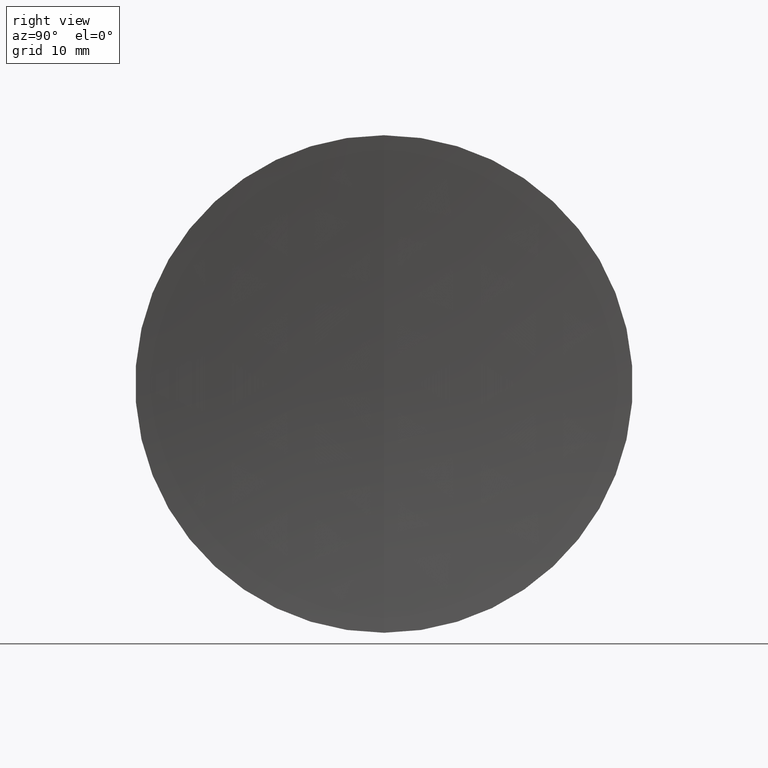
[diagram: clean part render]
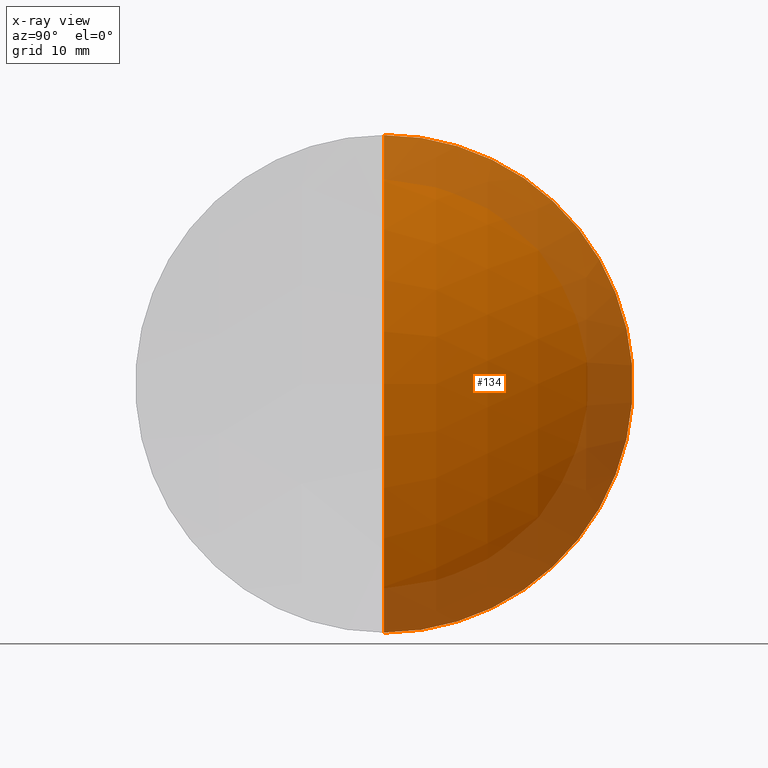
[diagram: x-ray — body ghosted, one internal face saturated and labeled with its STEP entity id]
A machine part, right view, then the same camera in x-ray: the body is ghosted and one INTERNAL B-rep face — a face not visible from any outside direction — is saturated and labeled: STEP entity #134.
In plain terms, the highlighted spherical surface has radius 48.31 mm.
Its self-contained STEP definition (entity closure, byte-faithful):
#5 = DIRECTION ( 'NONE',  ( 0.0000000000000000000, -1.000000000000000000, 0.0000000000000000000 ) ) ;
#9 = CARTESIAN_POINT ( 'NONE',  ( 62.59034463297795300, 0.0000000000000000000, -1.005007927519728000E-022 ) ) ;
#15 = CARTESIAN_POINT ( 'NONE',  ( 110.9003446329779600, 0.0000000000000000000, 2.958134242839639600E-015 ) ) ;
#17 = CARTESIAN_POINT ( 'NONE',  ( 103.6840923325976700, 0.0000000000000000000, 25.39999999999999500 ) ) ;
#22 = EDGE_CURVE ( 'NONE', #316, #40, #136, .T. ) ;
#40 = VERTEX_POINT ( 'NONE', #320 ) ;
#60 = AXIS2_PLACEMENT_3D ( 'NONE', #166, #87, #328 ) ;
#79 = DIRECTION ( 'NONE',  ( -0.0000000000000000000, 1.000000000000000000, 1.224646799147353200E-016 ) ) ;
#87 = DIRECTION ( 'NONE',  ( -1.000000000000000000, -0.0000000000000000000, -0.0000000000000000000 ) ) ;
#91 = AXIS2_PLACEMENT_3D ( 'NONE', #212, #5, #265 ) ;
#100 = AXIS2_PLACEMENT_3D ( 'NONE', #158, #133, #189 ) ;
#124 = VERTEX_POINT ( 'NONE', #15 ) ;
#125 = ORIENTED_EDGE ( 'NONE', *, *, #156, .T. ) ;
#133 = DIRECTION ( 'NONE',  ( 0.0000000000000000000, 1.000000000000000000, 0.0000000000000000000 ) ) ;
#134 = ADVANCED_FACE ( 'NONE', ( #338 ), #273, .T. ) ;
#136 = CIRCLE ( 'NONE', #60, 25.39999999999999500 ) ;
#145 = AXIS2_PLACEMENT_3D ( 'NONE', #9, #79, #347 ) ;
#156 = EDGE_CURVE ( 'NONE', #124, #40, #175, .T. ) ;
#158 = CARTESIAN_POINT ( 'NONE',  ( 62.59034463297795300, 0.0000000000000000000, -1.005007927519728000E-022 ) ) ;
#164 = ORIENTED_EDGE ( 'NONE', *, *, #186, .F. ) ;
#166 = CARTESIAN_POINT ( 'NONE',  ( 103.6840923325976700, 0.0000000000000000000, 0.0000000000000000000 ) ) ;
#175 = CIRCLE ( 'NONE', #145, 48.31000000000000900 ) ;
#180 = CIRCLE ( 'NONE', #91, 48.31000000000000900 ) ;
#186 = EDGE_CURVE ( 'NONE', #124, #316, #180, .T. ) ;
#189 = DIRECTION ( 'NONE',  ( 0.0000000000000000000, 0.0000000000000000000, 1.000000000000000000 ) ) ;
#212 = CARTESIAN_POINT ( 'NONE',  ( 62.59034463297795300, 0.0000000000000000000, -1.005007927519728000E-022 ) ) ;
#265 = DIRECTION ( 'NONE',  ( 0.0000000000000000000, 0.0000000000000000000, -1.000000000000000000 ) ) ;
#273 = SPHERICAL_SURFACE ( 'NONE', #100, 48.31000000000000900 ) ;
#291 = EDGE_LOOP ( 'NONE', ( #164, #125, #301 ) ) ;
#301 = ORIENTED_EDGE ( 'NONE', *, *, #22, .F. ) ;
#316 = VERTEX_POINT ( 'NONE', #17 ) ;
#320 = CARTESIAN_POINT ( 'NONE',  ( 103.6840923325976700, 3.110602869834276500E-015, -25.39999999999999500 ) ) ;
#328 = DIRECTION ( 'NONE',  ( 0.0000000000000000000, 0.0000000000000000000, 1.000000000000000000 ) ) ;
#338 = FACE_OUTER_BOUND ( 'NONE', #291, .T. ) ;
#347 = DIRECTION ( 'NONE',  ( 0.0000000000000000000, -1.224646799147353200E-016, 1.000000000000000000 ) ) ;